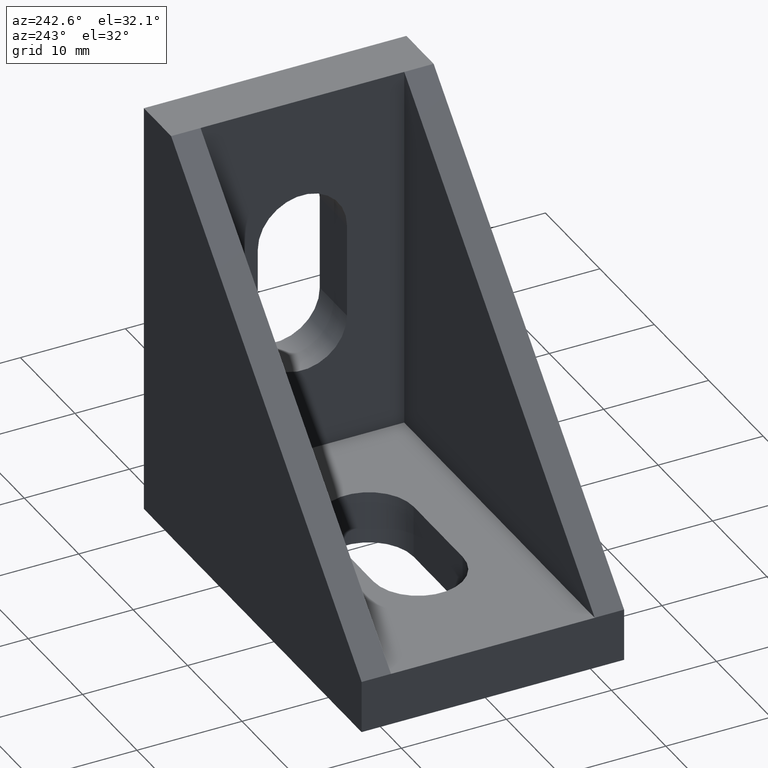
[diagram: clean part render]
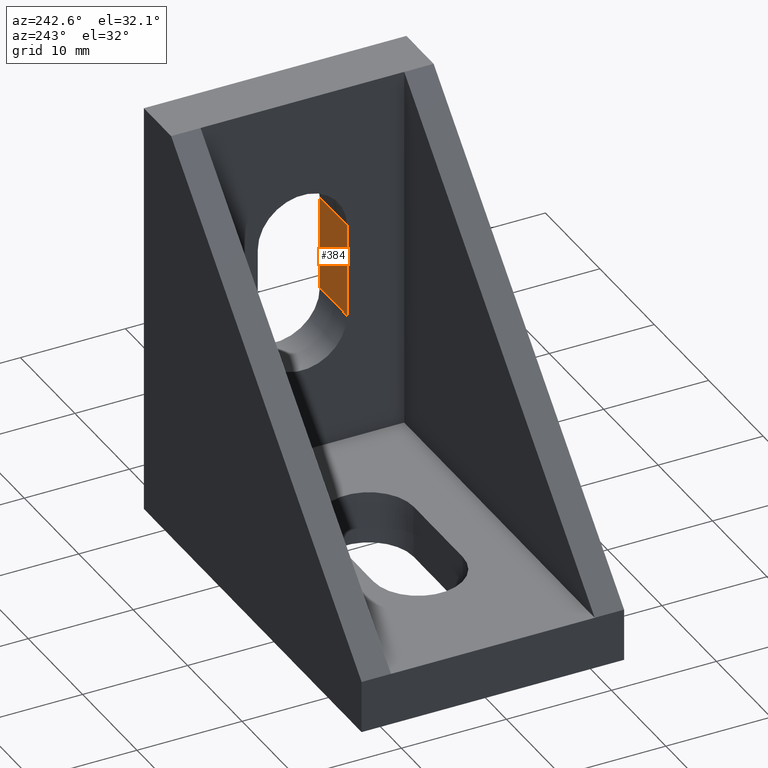
[diagram: same view with one face highlighted and labeled with its STEP entity id]
A machine part, auxiliary view. The second image highlights one B-rep face of the part: STEP entity #384.
In plain terms, the highlighted planar face has unit normal (0, -1, 0).
Its self-contained STEP definition (entity closure, byte-faithful):
#20=PLANE('',#431);
#38=FACE_OUTER_BOUND('',#58,.T.);
#58=EDGE_LOOP('',(#281,#282,#283,#284));
#80=LINE('',#565,#126);
#84=LINE('',#576,#130);
#85=LINE('',#579,#131);
#86=LINE('',#580,#132);
#126=VECTOR('',#461,10.);
#130=VECTOR('',#471,10.);
#131=VECTOR('',#476,10.);
#132=VECTOR('',#477,10.);
#180=VERTEX_POINT('',#559);
#182=VERTEX_POINT('',#563);
#185=VERTEX_POINT('',#573);
#186=VERTEX_POINT('',#575);
#218=EDGE_CURVE('',#180,#182,#80,.T.);
#223=EDGE_CURVE('',#185,#186,#84,.T.);
#225=EDGE_CURVE('',#180,#185,#85,.T.);
#226=EDGE_CURVE('',#186,#182,#86,.T.);
#281=ORIENTED_EDGE('',*,*,#225,.F.);
#282=ORIENTED_EDGE('',*,*,#218,.T.);
#283=ORIENTED_EDGE('',*,*,#226,.F.);
#284=ORIENTED_EDGE('',*,*,#223,.F.);
#384=ADVANCED_FACE('',(#38),#20,.F.);
#431=AXIS2_PLACEMENT_3D('',#578,#474,#475);
#461=DIRECTION('',(1.,0.,0.));
#471=DIRECTION('',(1.,0.,0.));
#474=DIRECTION('center_axis',(0.,-1.,0.));
#475=DIRECTION('ref_axis',(0.,0.,-1.));
#476=DIRECTION('',(0.,0.,-1.));
#477=DIRECTION('',(0.,0.,1.));
#559=CARTESIAN_POINT('',(17.4999999999382,-4.25,26.25));
#563=CARTESIAN_POINT('',(22.4999999999382,-4.25,26.25));
#565=CARTESIAN_POINT('',(15.4999999999382,-4.25,26.25));
#573=CARTESIAN_POINT('',(17.4999999999382,-4.25,17.25));
#575=CARTESIAN_POINT('',(22.4999999999382,-4.25,17.25));
#576=CARTESIAN_POINT('',(15.4999999999382,-4.25,17.25));
#578=CARTESIAN_POINT('Origin',(15.4999999999382,-4.25,26.25));
#579=CARTESIAN_POINT('',(17.4999999999382,-4.25,33.1249999999202));
#580=CARTESIAN_POINT('',(22.49999999991,-4.25,13.1249783464566));